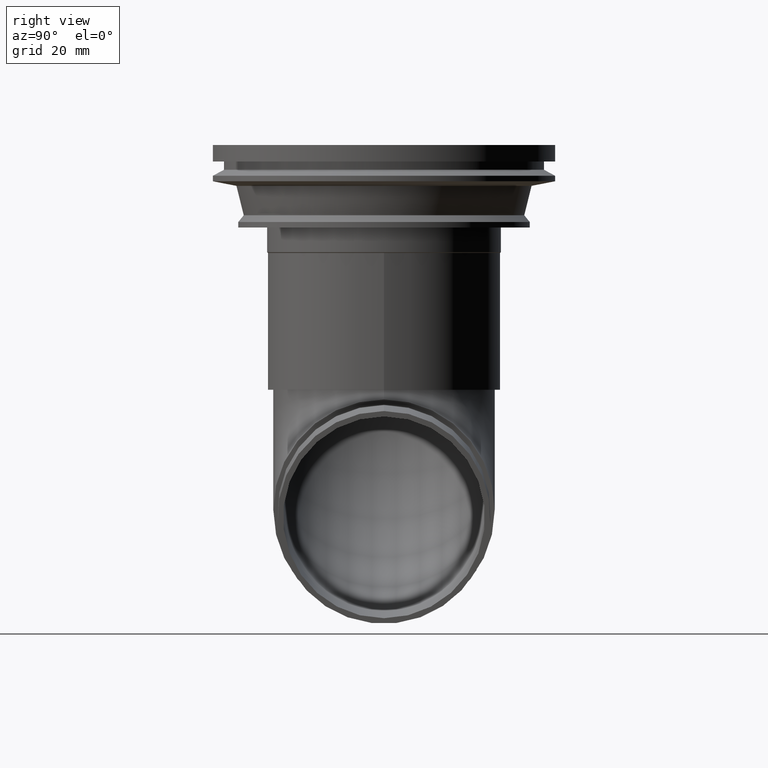
[diagram: clean part render]
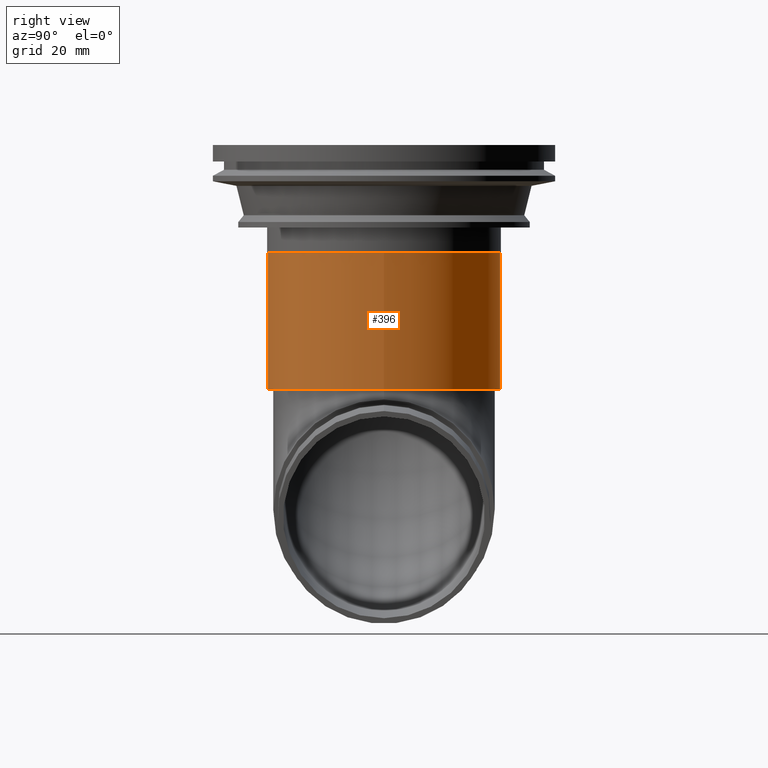
[diagram: same view with one face highlighted and labeled with its STEP entity id]
A machine part, right view. The second image highlights one B-rep face of the part: STEP entity #396.
In plain terms, the highlighted cylindrical surface (bore or boss wall) has radius 42.2 mm, axis along (0, 0, 1).
Its self-contained STEP definition (entity closure, byte-faithful):
#31=CYLINDRICAL_SURFACE('',#471,42.2);
#97=ORIENTED_EDGE('',*,*,#142,.T.);
#98=ORIENTED_EDGE('',*,*,#130,.T.);
#130=EDGE_CURVE('',#165,#165,#200,.F.);
#142=EDGE_CURVE('',#177,#177,#212,.T.);
#165=VERTEX_POINT('',#676);
#177=VERTEX_POINT('',#713);
#200=CIRCLE('',#447,42.2);
#212=CIRCLE('',#472,42.2);
#272=EDGE_LOOP('',(#97));
#273=EDGE_LOOP('',(#98));
#342=FACE_BOUND('',#272,.T.);
#343=FACE_BOUND('',#273,.T.);
#396=ADVANCED_FACE('',(#342,#343),#31,.T.);
#447=AXIS2_PLACEMENT_3D('',#675,#548,#549);
#471=AXIS2_PLACEMENT_3D('',#711,#596,#597);
#472=AXIS2_PLACEMENT_3D('',#712,#598,#599);
#548=DIRECTION('',(0.,0.,1.));
#549=DIRECTION('',(1.,0.,0.));
#596=DIRECTION('',(0.,0.,1.));
#597=DIRECTION('',(1.,0.,0.));
#598=DIRECTION('',(0.,0.,1.));
#599=DIRECTION('',(1.,0.,0.));
#675=CARTESIAN_POINT('',(0.,0.,-39.225));
#676=CARTESIAN_POINT('',(42.2,0.,-39.225));
#711=CARTESIAN_POINT('',(0.,0.,-39.));
#712=CARTESIAN_POINT('',(0.,0.,-89.));
#713=CARTESIAN_POINT('',(42.2,0.,-89.));